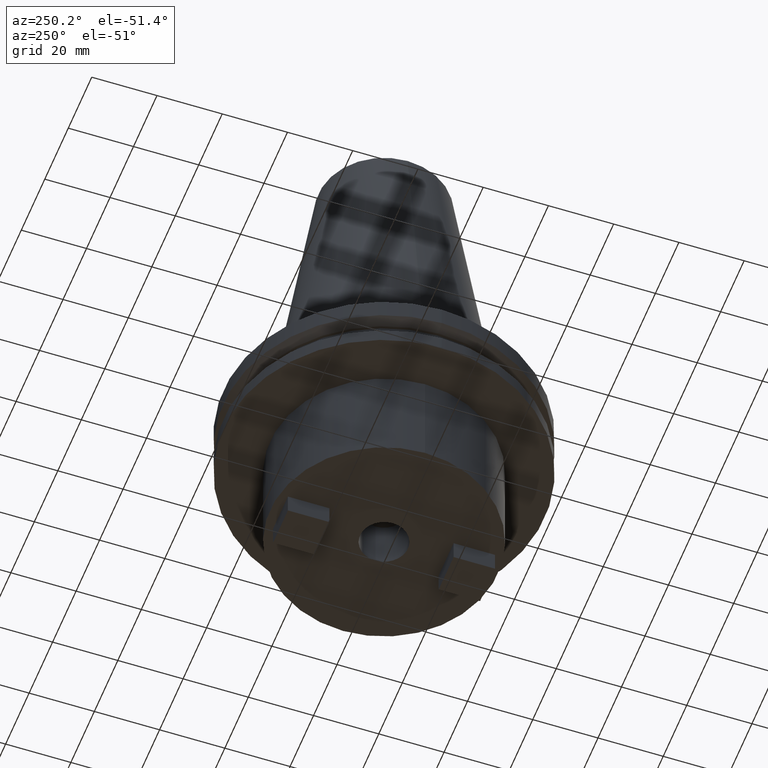
[diagram: clean part render]
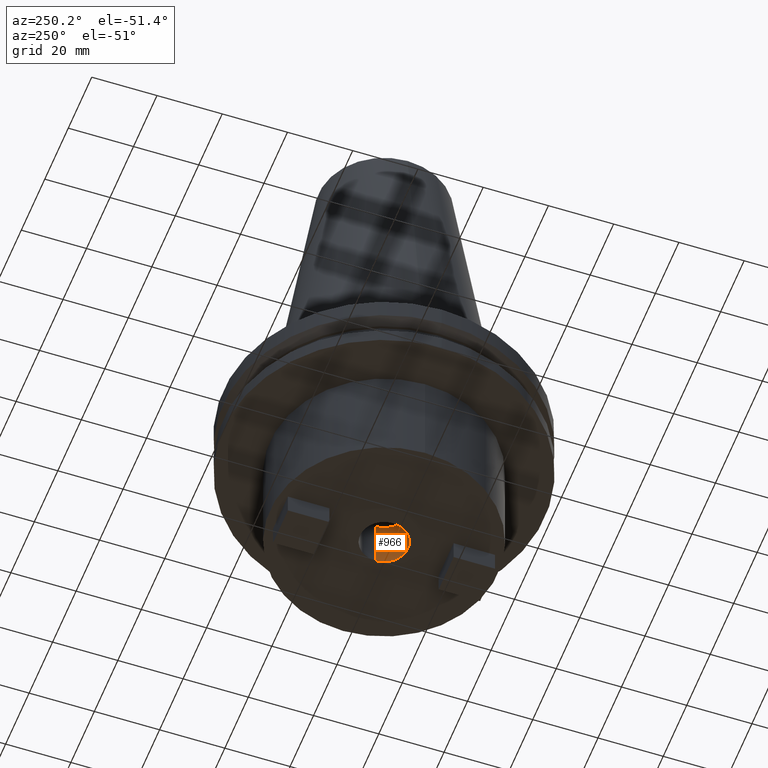
[diagram: same view with one face highlighted and labeled with its STEP entity id]
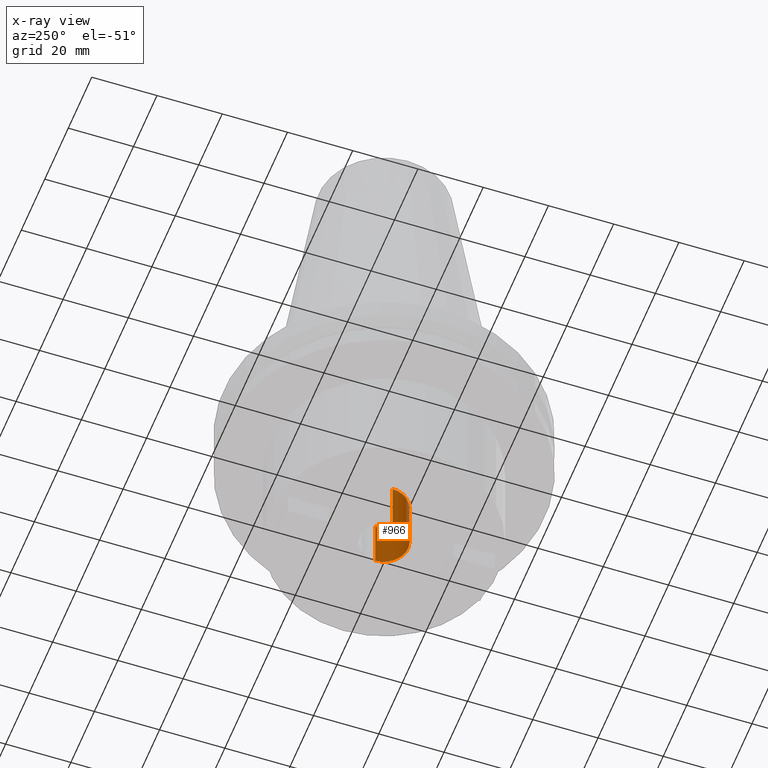
[diagram: x-ray of the same camera — body ghosted, the highlighted face saturated]
A machine part, auxiliary view. The second image highlights one B-rep face of the part: STEP entity #966.
The next image is the same camera in x-ray: the body ghosted, the highlighted face saturated — about 0% of this face is hidden behind the body in this view.
In plain terms, the highlighted cylindrical surface (edge-blend (fillet) strip) has radius 7.34 mm, axis along (-0, -0, 1).
Its self-contained STEP definition (entity closure, byte-faithful):
#38 = DIRECTION ( 'NONE',  ( 1.000000000000000000, 0.000000000000000000, 0.000000000000000000 ) ) ;
#46 = DIRECTION ( 'NONE',  ( 1.000000000000000000, 0.000000000000000000, 0.000000000000000000 ) ) ;
#108 = ORIENTED_EDGE ( 'NONE', *, *, #418, .T. ) ;
#116 = LINE ( 'NONE', #834, #331 ) ;
#157 = ORIENTED_EDGE ( 'NONE', *, *, #517, .T. ) ;
#165 = EDGE_LOOP ( 'NONE', ( #508, #108, #157, #486 ) ) ;
#205 = CARTESIAN_POINT ( 'NONE',  ( -7.339999999999969660, 8.988907505741536366E-16, -50.80000000000001137 ) ) ;
#237 = VERTEX_POINT ( 'NONE', #584 ) ;
#240 = EDGE_CURVE ( 'NONE', #237, #711, #116, .T. ) ;
#269 = DIRECTION ( 'NONE',  ( -0.000000000000000000, -0.000000000000000000, 1.000000000000000000 ) ) ;
#304 = CARTESIAN_POINT ( 'NONE',  ( -7.339999999999966107, 8.988907505741532422E-16, -35.04999999999999716 ) ) ;
#318 = LINE ( 'NONE', #478, #819 ) ;
#331 = VECTOR ( 'NONE', #432, 1000.000000000000000 ) ;
#356 = VERTEX_POINT ( 'NONE', #304 ) ;
#418 = EDGE_CURVE ( 'NONE', #629, #356, #318, .T. ) ;
#432 = DIRECTION ( 'NONE',  ( -0.000000000000000000, -0.000000000000000000, 1.000000000000000000 ) ) ;
#454 = DIRECTION ( 'NONE',  ( 1.000000000000000000, 0.000000000000000000, 0.000000000000000000 ) ) ;
#478 = CARTESIAN_POINT ( 'NONE',  ( -7.339999999999966107, 8.988907505741532422E-16, 0.000000000000000000 ) ) ;
#486 = ORIENTED_EDGE ( 'NONE', *, *, #240, .F. ) ;
#496 = AXIS2_PLACEMENT_3D ( 'NONE', #590, #750, #454 ) ;
#508 = ORIENTED_EDGE ( 'NONE', *, *, #1005, .F. ) ;
#517 = EDGE_CURVE ( 'NONE', #356, #711, #757, .T. ) ;
#524 = CARTESIAN_POINT ( 'NONE',  ( 7.339999999999966107, 0.000000000000000000, -35.04999999999999716 ) ) ;
#584 = CARTESIAN_POINT ( 'NONE',  ( 7.339999999999968772, 0.000000000000000000, -50.80000000000001137 ) ) ;
#590 = CARTESIAN_POINT ( 'NONE',  ( 0.000000000000000000, 0.000000000000000000, 0.000000000000000000 ) ) ;
#629 = VERTEX_POINT ( 'NONE', #205 ) ;
#650 = CIRCLE ( 'NONE', #983, 7.339999999999968772 ) ;
#683 = CYLINDRICAL_SURFACE ( 'NONE', #496, 7.339999999999966107 ) ;
#711 = VERTEX_POINT ( 'NONE', #524 ) ;
#728 = DIRECTION ( 'NONE',  ( -0.000000000000000000, -0.000000000000000000, 1.000000000000000000 ) ) ;
#750 = DIRECTION ( 'NONE',  ( -0.000000000000000000, -0.000000000000000000, 1.000000000000000000 ) ) ;
#757 = CIRCLE ( 'NONE', #931, 7.339999999999966107 ) ;
#760 = CARTESIAN_POINT ( 'NONE',  ( 0.000000000000000000, 0.000000000000000000, -50.80000000000001137 ) ) ;
#816 = CARTESIAN_POINT ( 'NONE',  ( 0.000000000000000000, 0.000000000000000000, -35.04999999999999716 ) ) ;
#819 = VECTOR ( 'NONE', #728, 1000.000000000000000 ) ;
#834 = CARTESIAN_POINT ( 'NONE',  ( 7.339999999999966107, 0.000000000000000000, 0.000000000000000000 ) ) ;
#909 = FACE_OUTER_BOUND ( 'NONE', #165, .T. ) ;
#931 = AXIS2_PLACEMENT_3D ( 'NONE', #816, #959, #38 ) ;
#959 = DIRECTION ( 'NONE',  ( -0.000000000000000000, -0.000000000000000000, 1.000000000000000000 ) ) ;
#966 = ADVANCED_FACE ( 'NONE', ( #909 ), #683, .F. ) ;
#983 = AXIS2_PLACEMENT_3D ( 'NONE', #760, #269, #46 ) ;
#1005 = EDGE_CURVE ( 'NONE', #629, #237, #650, .T. ) ;